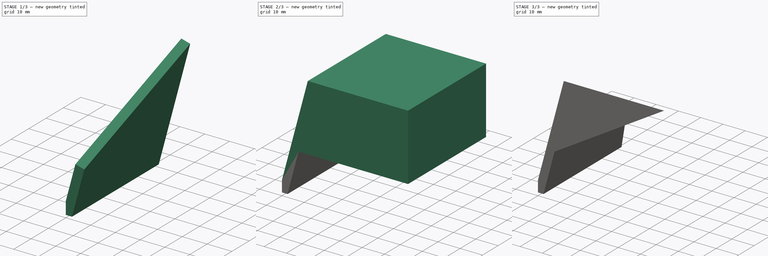
[diagram: build sequence overview — one tinted view per stage of 3, left to right]
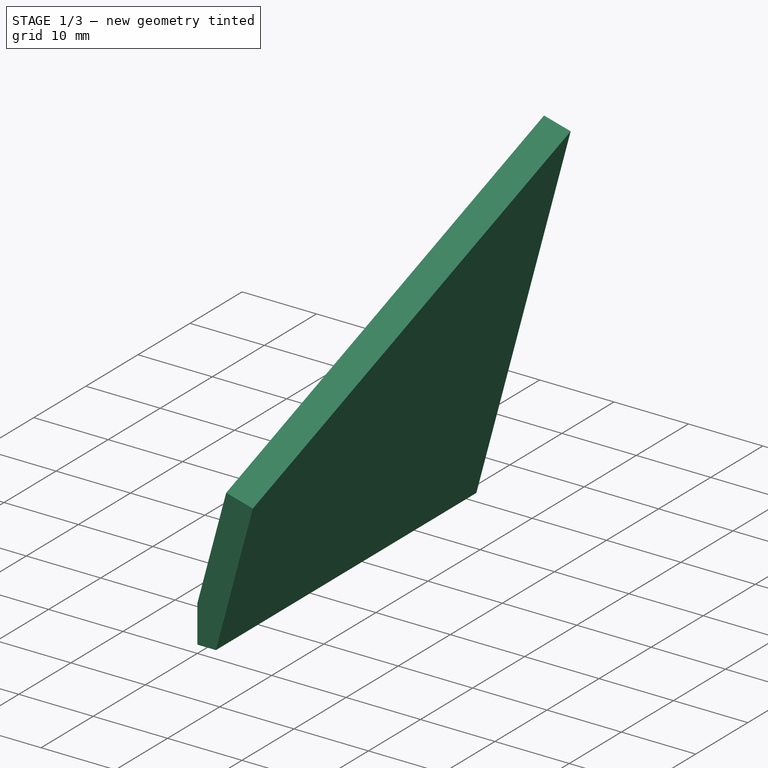
[diagram: stage 1 of 3 — iso view after this stage's code; geometry added in this stage tinted green]
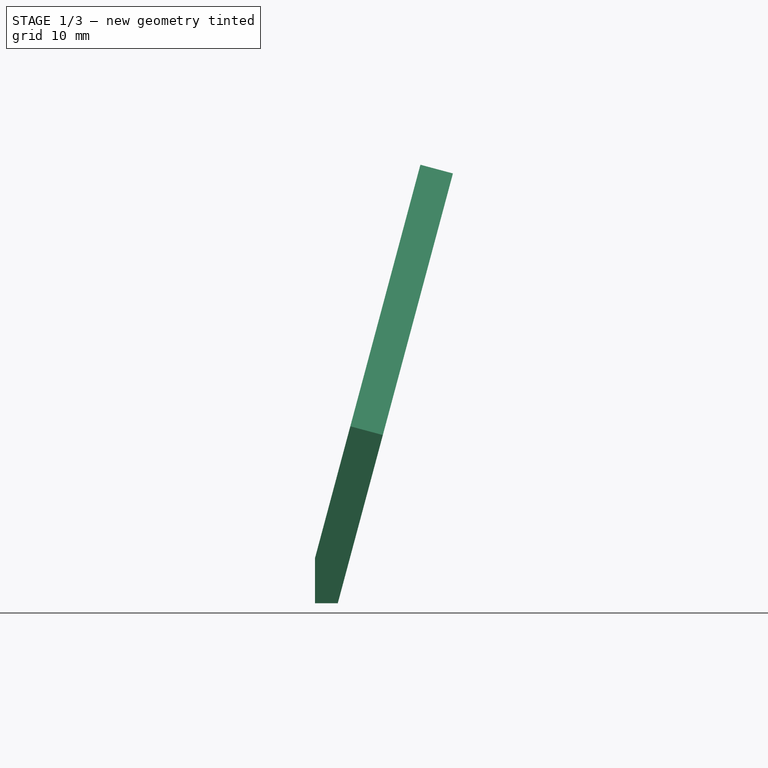
[diagram: stage 1 of 3 — front view after this stage's code; geometry added in this stage tinted green]
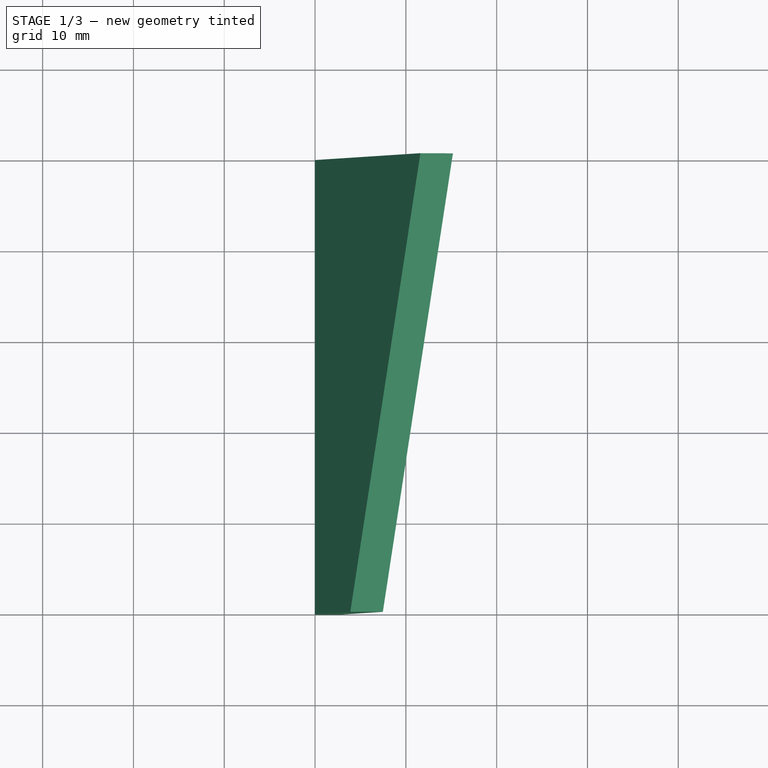
[diagram: stage 1 of 3 — top view after this stage's code; geometry added in this stage tinted green]
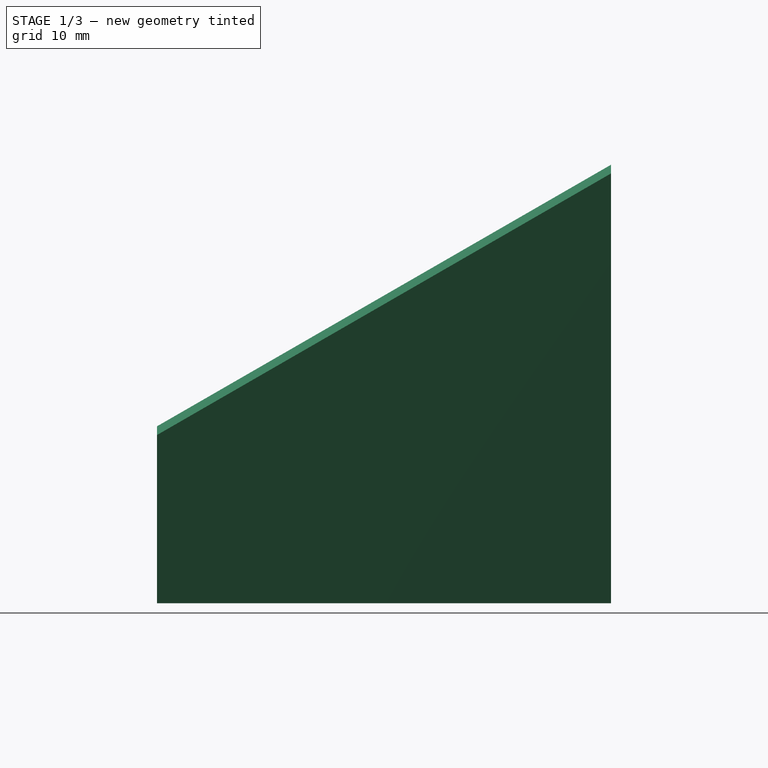
[diagram: stage 1 of 3 — right view after this stage's code; geometry added in this stage tinted green]
FCSTD DOCUMENT  (FreeCAD 1.0R39109 (Git))
Label: paper-plane
License: All rights reserved
LicenseURL: https://en.wikipedia.org/wiki/All_rights_reserved
objects: Sketcher::SketchObject×7, PartDesign::Pocket×3, PartDesign::Pad×2, PartDesign::Body×1
note: 30 computed .brp shape members not serialized (recipe doc carries the construction recipe); baked Part::Feature solids carry a one-line shape summary decoded from their .brp

FEATURE [Sketcher::SketchObject] Sketch
  ArcFitTolerance = 1e-06
  AttachmentSupport = -> [XZ_Plane]
  FullyConstrained = true
  MakeInternals = false
  MapMode = 5
  Placement = pos=(0,0,0) rot=(1,0,0;1.5708rad)
  sketch-geometry (5):
    g0: LineSegment StartX=0 StartY=5 StartZ=0 EndX=12.941 EndY=53.2963 EndZ=0
    g1: LineSegment StartX=2.5 StartY=0 StartZ=0 EndX=15.4409 EndY=48.2963 EndZ=0
    g2: LineSegment StartX=0 StartY=5 StartZ=0 EndX=0 EndY=0 EndZ=0
    g3: LineSegment StartX=2.5 StartY=0 StartZ=0 EndX=0 EndY=0 EndZ=0
    g4: LineSegment StartX=12.941 StartY=53.2963 StartZ=0 EndX=15.4409 EndY=48.2963 EndZ=0
  constraints (14):
    c: Distance(g0) = 50
    c: Angle(g-1,g0) = 1.309
    c: PointOnObject(g0,g-2)
    c: DistanceY(g-1,g0) = 5
    c: Distance(g1) = 50
    c: Angle(g-1,g1) = 1.309
    c: PointOnObject(g1,g-1)
    c: DistanceX(g-1,g1) = 2.5
    c: Coincident(g2,g0)
    c: Coincident(g2,g-1)
    c: Coincident(g3,g1)
    c: Coincident(g3,g2)
    c: Coincident(g4,g0)
    c: Coincident(g4,g1)
FEATURE [PartDesign::Pad] Pad
  Direction = (0,-1,2e-16)
  Length = 50
  Length2 = 10
  Placement = pos=(0,0,0) rot=(1,0,0;1.5708rad)
  Profile = -> Sketch
  ReferenceAxis = -> Sketch [N_Axis]
  Refine = true
  Suppressed = false
  Type = 0
FEATURE [Sketcher::SketchObject] Sketch001
  ArcFitTolerance = 1e-06
  AttachmentSupport = -> [Pad]
  ExternalGeometry = -> [Pad]
  FullyConstrained = false
  MakeInternals = false
  MapMode = 5
  Placement = pos=(-1.25,1e-16,0.334936) rot=(-0.608761,0,0.793353;3.14159rad)
  sketch-geometry (4):
    g0: LineSegment StartX=-54.8296 StartY=-1.18e-14 StartZ=0 EndX=-54.8296 EndY=50 EndZ=0
    g1: LineSegment StartX=-54.8296 StartY=50 StartZ=0 EndX=-19.8296 EndY=50 EndZ=0
    g2: LineSegment StartX=-49.6522 StartY=-1.06e-14 StartZ=0 EndX=-19.8296 EndY=50 EndZ=0
    g3: LineSegment StartX=-54.8296 StartY=-1.18e-14 StartZ=0 EndX=-49.6522 EndY=-1.06e-14 EndZ=0
  constraints (9):
    c: Coincident(g0,g-6)
    c: Coincident(g0,g-4)
    c: Distance(g1) = 35
    c: Horizontal(g1)
    c: Coincident(g2,g1)
    c: Coincident(g1,g0)
    c: PointOnObject(g2,g-6)
    c: Coincident(g3,g0)
    c: Coincident(g3,g2)
FEATURE [PartDesign::Pocket] Pocket
  BaseFeature = -> Pad
  Direction = (0.965926,0,-0.258819)
  Length = 5
  Length2 = 5
  Placement = pos=(0,0,0) rot=(1,0,0;1.5708rad)
  Profile = -> Sketch001
  ReferenceAxis = -> Sketch001 [N_Axis]
  Refine = true
  Suppressed = false
  Type = 0
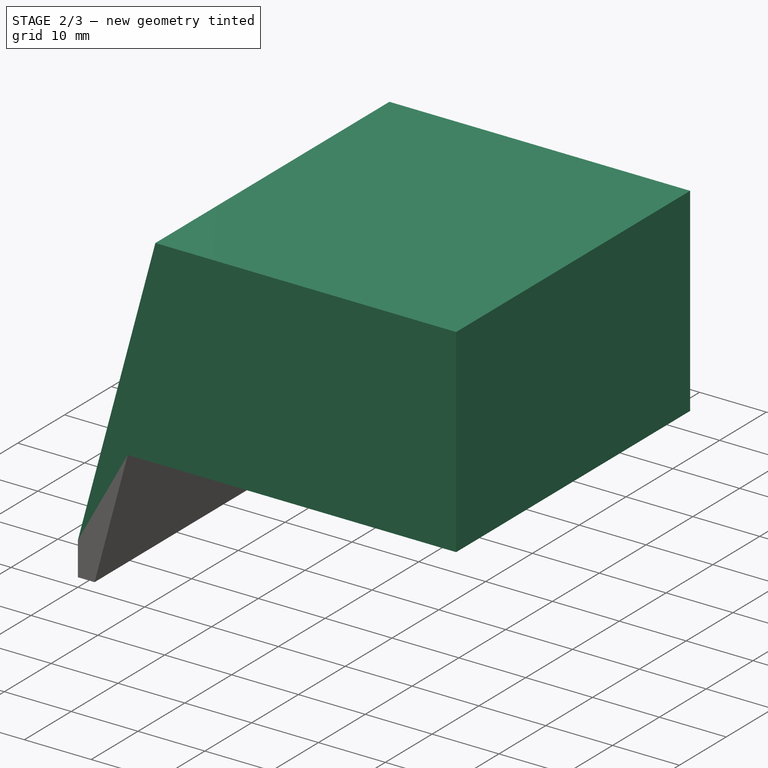
[diagram: stage 2 of 3 — iso view after this stage's code; geometry added in this stage tinted green]
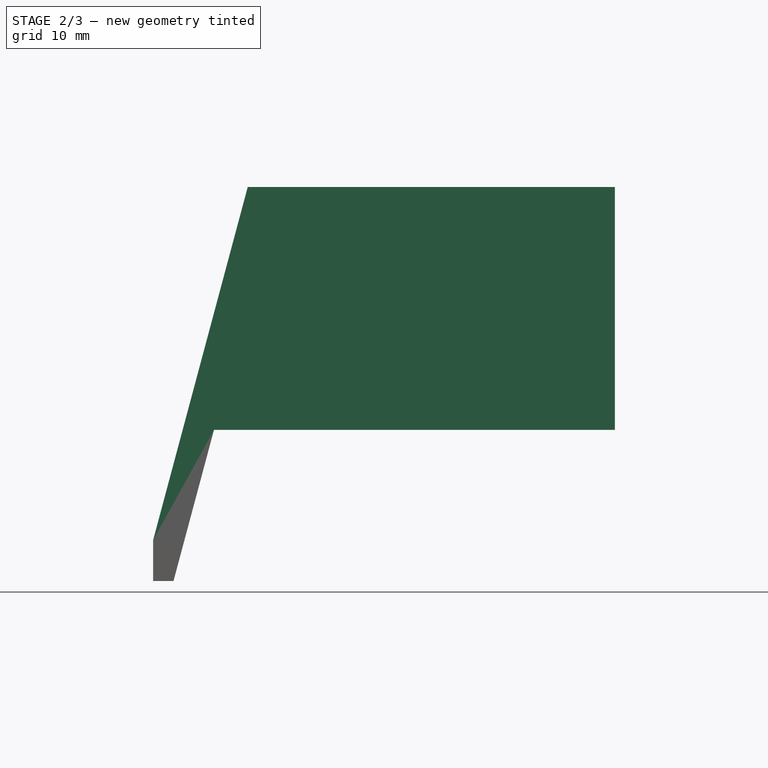
[diagram: stage 2 of 3 — front view after this stage's code; geometry added in this stage tinted green]
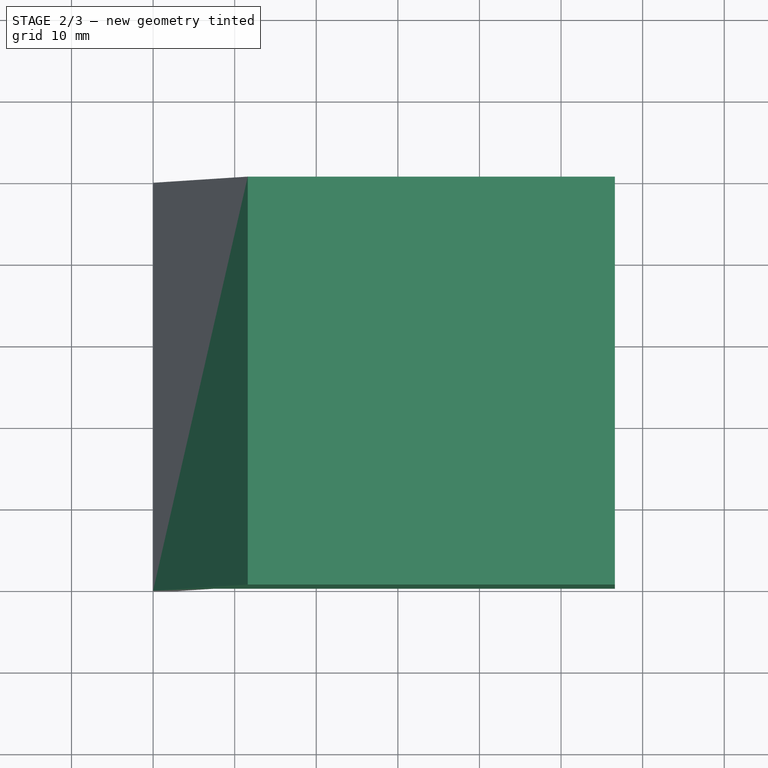
[diagram: stage 2 of 3 — top view after this stage's code; geometry added in this stage tinted green]
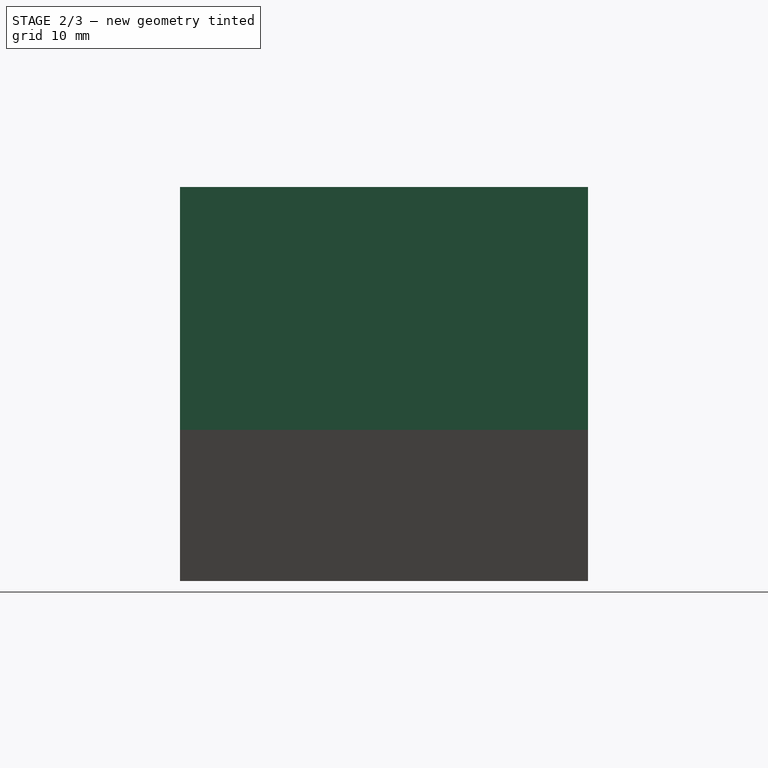
[diagram: stage 2 of 3 — right view after this stage's code; geometry added in this stage tinted green]
FEATURE [Sketcher::SketchObject] Sketch002
  ArcFitTolerance = 1e-06
  AttachmentSupport = -> [XZ_Plane]
  ExternalGeometry = -> [Pocket]
  FullyConstrained = true
  MakeInternals = false
  MapMode = 5
  Placement = pos=(0,0,0) rot=(1,0,0;1.5708rad)
  sketch-geometry (5):
    g0: LineSegment StartX=11.6009 StartY=48.2953 StartZ=0 EndX=3.88229 EndY=19.4889 EndZ=0
    g1: LineSegment StartX=3.88229 StartY=19.4889 StartZ=0 EndX=7.46482 EndY=18.529 EndZ=0
    g2: LineSegment StartX=11.6009 StartY=48.2953 StartZ=0 EndX=56.6009 EndY=48.2953 EndZ=0
    g3: LineSegment StartX=7.46482 StartY=18.529 StartZ=0 EndX=56.6009 EndY=18.529 EndZ=0
    g4: LineSegment StartX=56.6009 StartY=48.2953 StartZ=0 EndX=56.6009 EndY=18.529 EndZ=0
  constraints (12):
    c: Coincident(g0,g-8)
    c: Coincident(g0,g-11)
    c: Coincident(g1,g0)
    c: Coincident(g1,g-12)
    c: Distance(g2) = 45
    c: Coincident(g2,g0)
    c: Horizontal(g2)
    c: Coincident(g3,g1)
    c: Horizontal(g3)
    c: Coincident(g4,g2)
    c: Vertical(g4)
    c: Coincident(g3,g4)
FEATURE [PartDesign::Pad] Pad001
  BaseFeature = -> Pocket
  Direction = (0,-1,2e-16)
  Length = 50
  Length2 = 10
  Placement = pos=(0,0,0) rot=(1,0,0;1.5708rad)
  Profile = -> Sketch002
  ReferenceAxis = -> Sketch002 [N_Axis]
  Refine = true
  Suppressed = false
  Type = 0
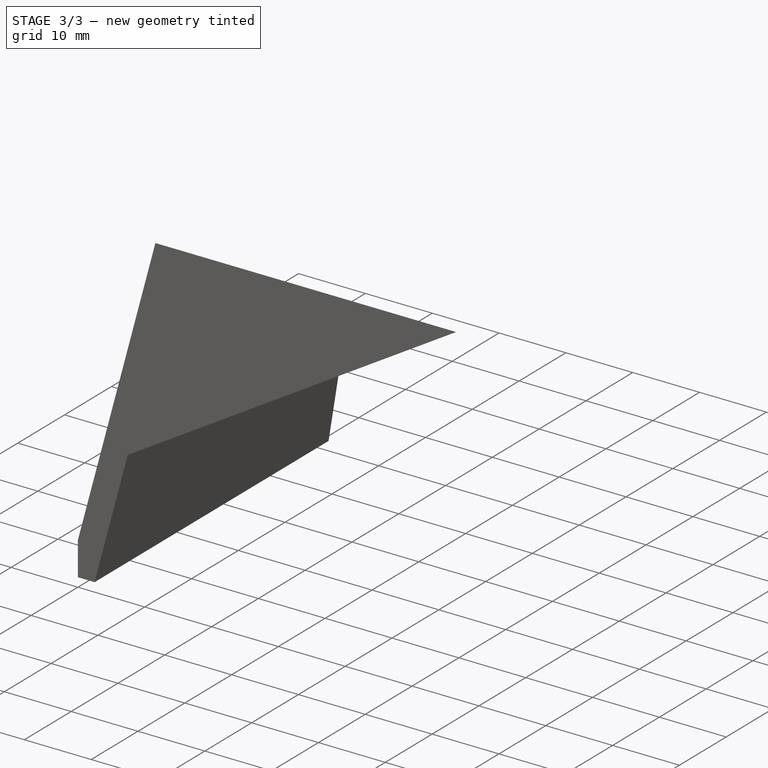
[diagram: stage 3 of 3 — iso view after this stage's code; geometry added in this stage tinted green]
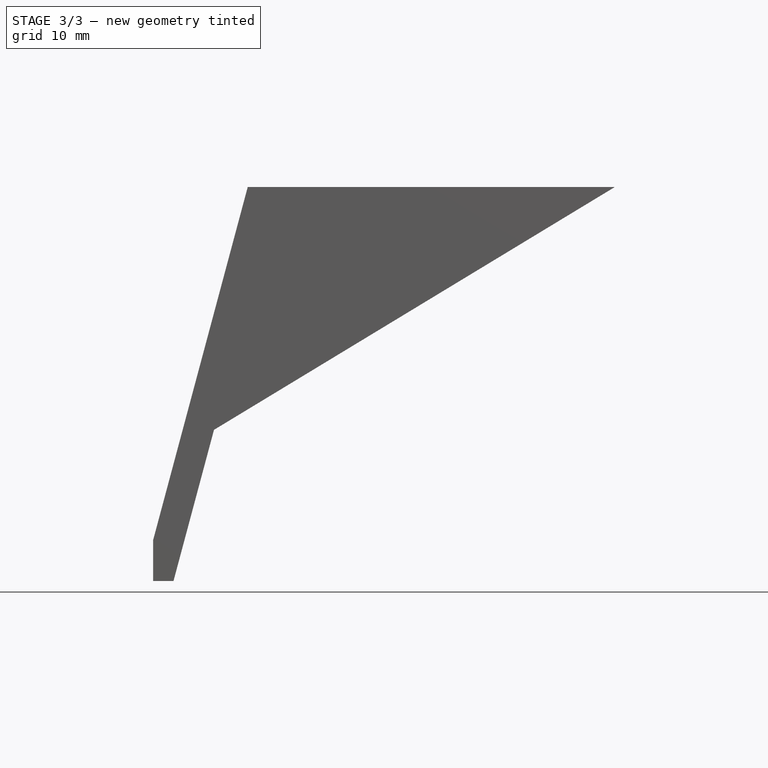
[diagram: stage 3 of 3 — front view after this stage's code; geometry added in this stage tinted green]
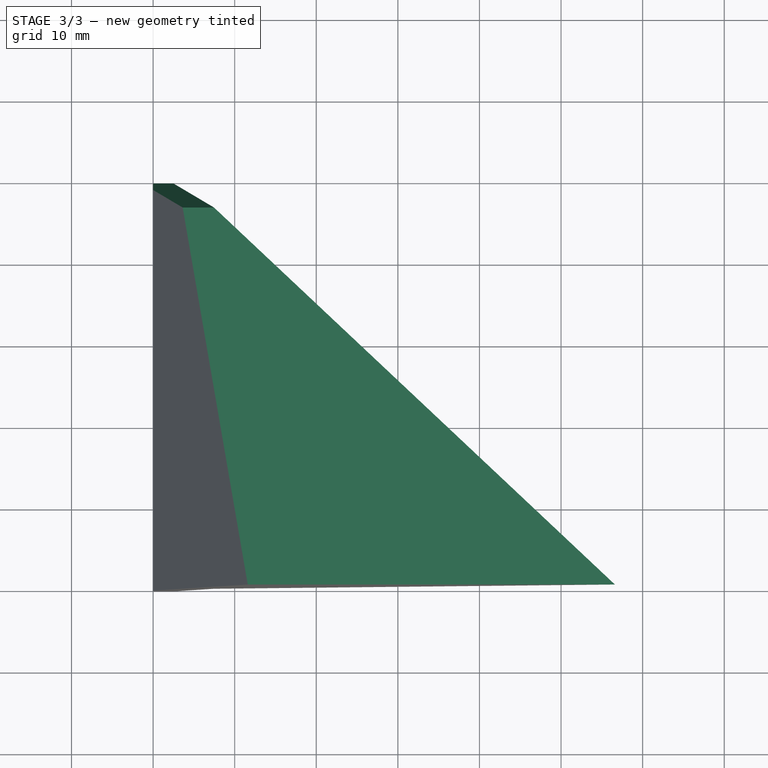
[diagram: stage 3 of 3 — top view after this stage's code; geometry added in this stage tinted green]
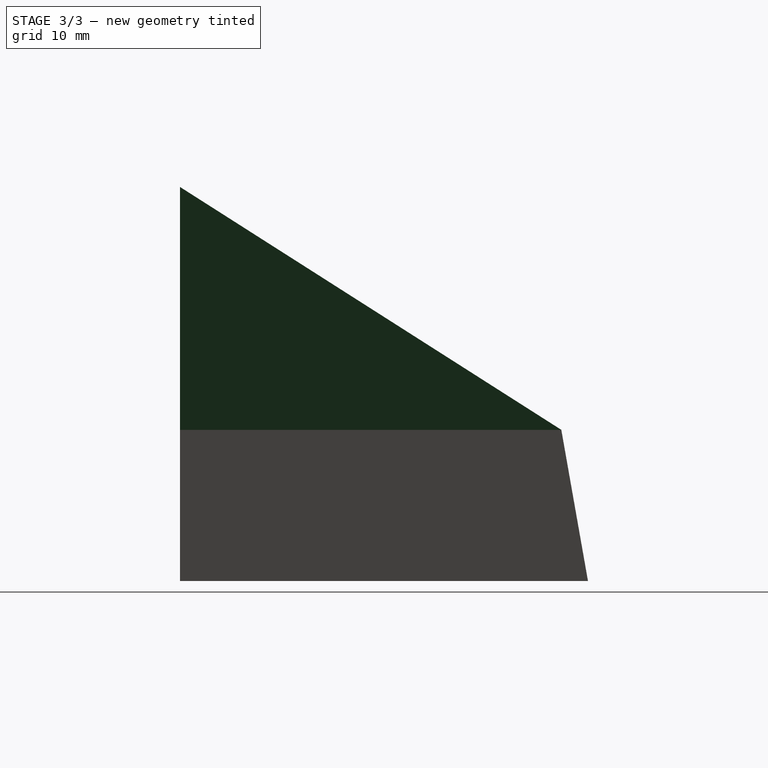
[diagram: stage 3 of 3 — right view after this stage's code; geometry added in this stage tinted green]
FEATURE [Sketcher::SketchObject] Sketch005
  ArcFitTolerance = 1e-06
  AttachmentSupport = -> [YZ_Plane]
  FullyConstrained = true
  MakeInternals = false
  MapMode = 5
  Placement = pos=(0,0,0) rot=(0.57735,0.57735,0.57735;2.0944rad)
  sketch-geometry (4):
    g0: LineSegment StartX=0 StartY=48.2953 StartZ=0 EndX=0 EndY=0 EndZ=0
    g1: LineSegment StartX=0 StartY=48.2953 StartZ=0 EndX=-50 EndY=48.2953 EndZ=0
    g2: LineSegment StartX=0 StartY=0 StartZ=0 EndX=-3.26715 EndY=18.529 EndZ=0
    g3: LineSegment StartX=-3.26715 StartY=18.529 StartZ=0 EndX=-50 EndY=48.2953 EndZ=0
  constraints (9):
    c: Coincident(g0,g-8)
    c: Coincident(g0,g-1)
    c: Coincident(g1,g0)
    c: Coincident(g1,g-9)
    c: Angle(g-1,g2) = 1.74533
    c: Coincident(g2,g0)
    c: PointOnObject(g2,g-4)
    c: Coincident(g3,g2)
    c: Coincident(g3,g1)
FEATURE [PartDesign::Pocket] Pocket002
  BaseFeature = -> Pad001
  Direction = (-1,0,0)
  Length = 80
  Length2 = 5
  Placement = pos=(0,0,0) rot=(1,0,0;1.5708rad)
  Profile = -> Sketch005
  ReferenceAxis = -> Sketch005 [N_Axis]
  Refine = true
  Reversed = true
  Suppressed = false
  Type = 0
FEATURE [Sketcher::SketchObject] Sketch007
  ArcFitTolerance = 1e-06
  AttachmentSupport = -> [XZ_Plane]
  ExternalGeometry = -> [Pocket002]
  FullyConstrained = true
  MakeInternals = false
  MapMode = 5
  Placement = pos=(0,0,0) rot=(1,0,0;1.5708rad)
  sketch-geometry (3):
    g0: LineSegment StartX=7.46482 StartY=18.529 StartZ=0 EndX=56.6009 EndY=18.529 EndZ=0
    g1: LineSegment StartX=56.6009 StartY=18.529 StartZ=0 EndX=56.6009 EndY=48.2953 EndZ=0
    g2: LineSegment StartX=56.6009 StartY=48.2953 StartZ=0 EndX=7.46482 EndY=18.529 EndZ=0
  constraints (6):
    c: Coincident(g0,g-7)
    c: Coincident(g0,g-8)
    c: Coincident(g1,g0)
    c: Coincident(g1,g-9)
    c: Coincident(g2,g1)
    c: Coincident(g2,g0)
FEATURE [PartDesign::Pocket] Pocket003
  BaseFeature = -> Pocket002
  Direction = (0,1,-2e-16)
  Length = 100
  Length2 = 5
  Placement = pos=(0,0,0) rot=(1,0,0;1.5708rad)
  Profile = -> Sketch007
  ReferenceAxis = -> Sketch007 [N_Axis]
  Refine = true
  Reversed = true
  Suppressed = false
  Type = 0
FEATURE [Sketcher::SketchObject] Sketch008
  ArcFitTolerance = 1e-06
  AttachmentSupport = -> [YZ_Plane]
  ExternalGeometry = -> [Pocket003]
  FullyConstrained = true
  MakeInternals = false
  MapMode = 5
  Placement = pos=(0,0,0) rot=(0.57735,0.57735,0.57735;2.0944rad)
  sketch-geometry (3):
    g0: LineSegment StartX=-50 StartY=18.529 StartZ=0 EndX=-10 EndY=18.529 EndZ=0
    g1: LineSegment StartX=-50 StartY=18.529 StartZ=0 EndX=-50 EndY=43.529 EndZ=0
    g2: LineSegment StartX=-10 StartY=18.529 StartZ=0 EndX=-50 EndY=43.529 EndZ=0
  constraints (8):
    c: Distance(g0) = 40
    c: Coincident(g0,g-5)
    c: PointOnObject(g0,g-3)
    c: Distance(g1) = 25
    c: Coincident(g1,g0)
    c: PointOnObject(g1,g-5)
    c: Coincident(g2,g0)
    c: Coincident(g2,g1)
FEATURE [Sketcher::SketchObject] Sketch009
  ArcFitTolerance = 1e-06
  AttachmentSupport = -> [XZ_Plane]
  ExternalGeometry = -> [Pocket003]
  FullyConstrained = false
  MakeInternals = false
  MapMode = 5
  Placement = pos=(0,0,0) rot=(1,0,0;1.5708rad)
  sketch-geometry (3):
    g0: LineSegment StartX=7.46482 StartY=18.529 StartZ=0 EndX=51.2885 EndY=45.0771 EndZ=0
    g1: LineSegment StartX=51.2885 StartY=45.0771 StartZ=0 EndX=14.5784 EndY=45.0771 EndZ=0
    g2: LineSegment StartX=7.46482 StartY=18.529 StartZ=0 EndX=14.5784 EndY=45.0771 EndZ=0
  constraints (7):
    c: Coincident(g0,g-5)
    c: PointOnObject(g0,g-5)
    c: Coincident(g1,g0)
    c: Coincident(g2,g0)
    c: Parallel(g2,g-4)
    c: Parallel(g1,g-3)
    c: Coincident(g2,g1)
FEATURE [PartDesign::Body] Body
  AllowCompound = false
  Group = -> [Sketch,Pad,Sketch001,Pocket,Sketch002,Pad001,Sketch005,Pocket002,Sketch007,Pocket003,Sketch008,Sketch009]
  Origin = -> Origin
  Tip = -> Pocket003
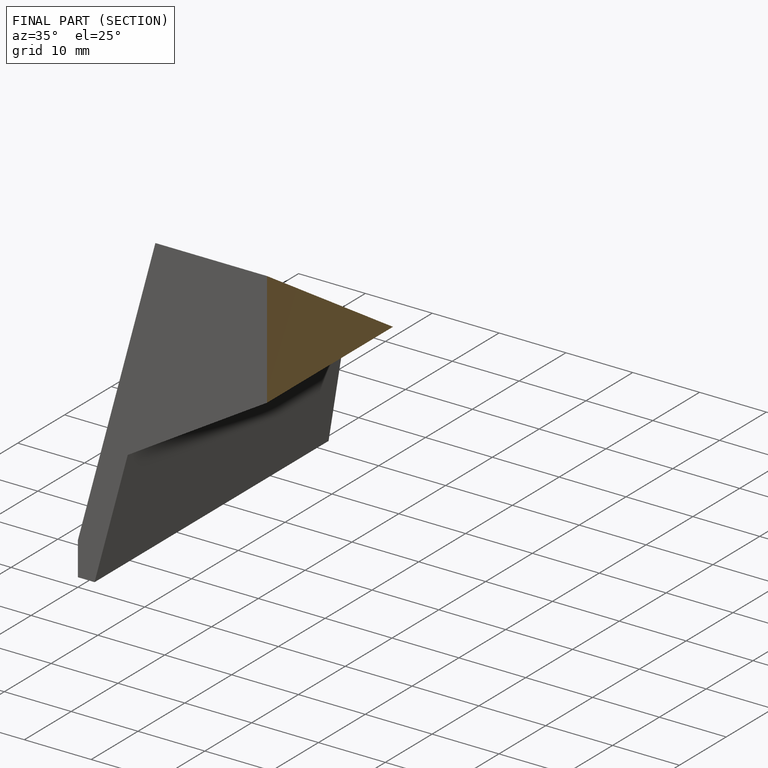
[diagram: finished part — half-section view (interior)]
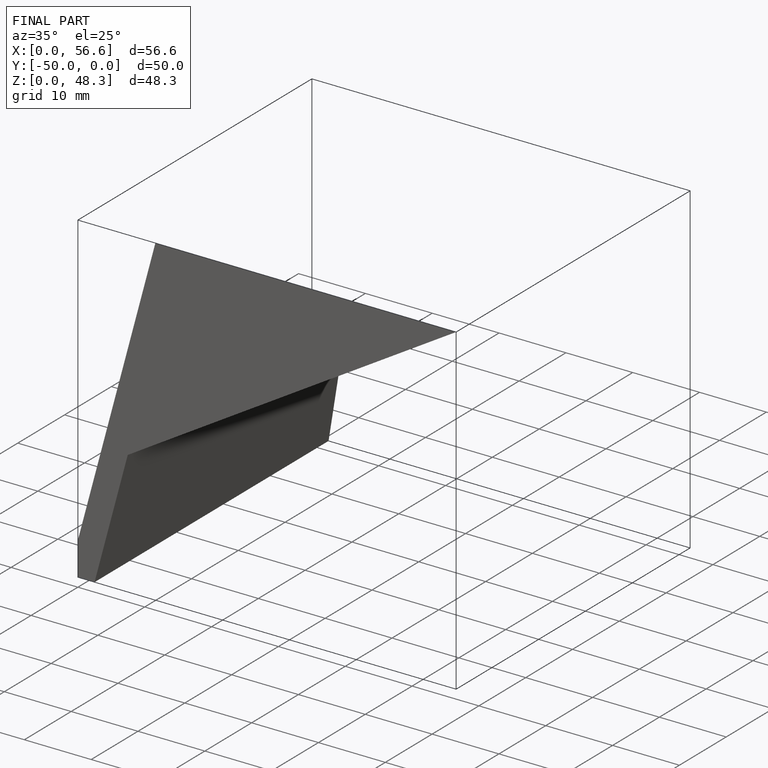
[diagram: finished part — iso view with bounding-box wireframe]
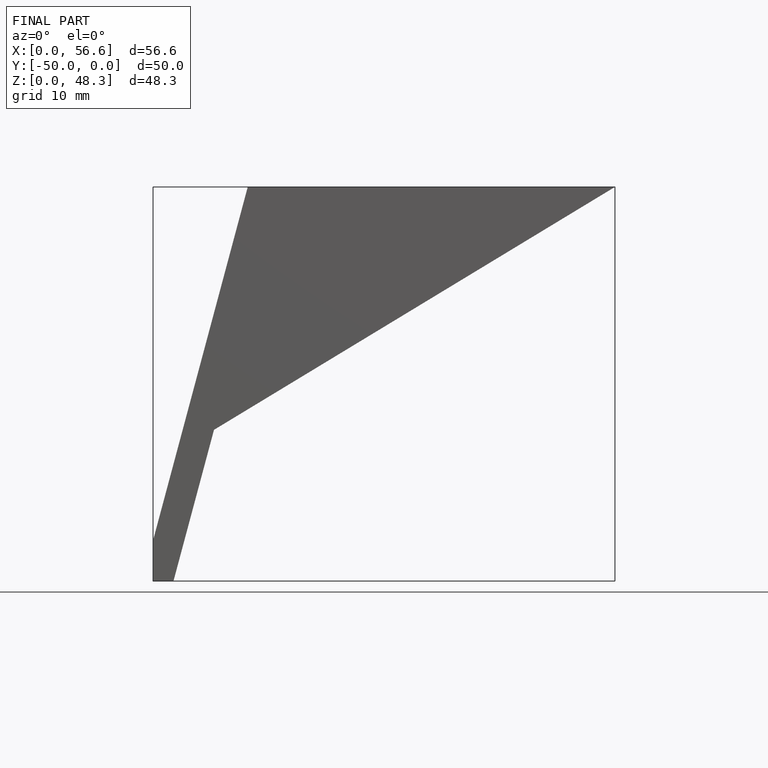
[diagram: finished part — front view with bounding-box wireframe]
